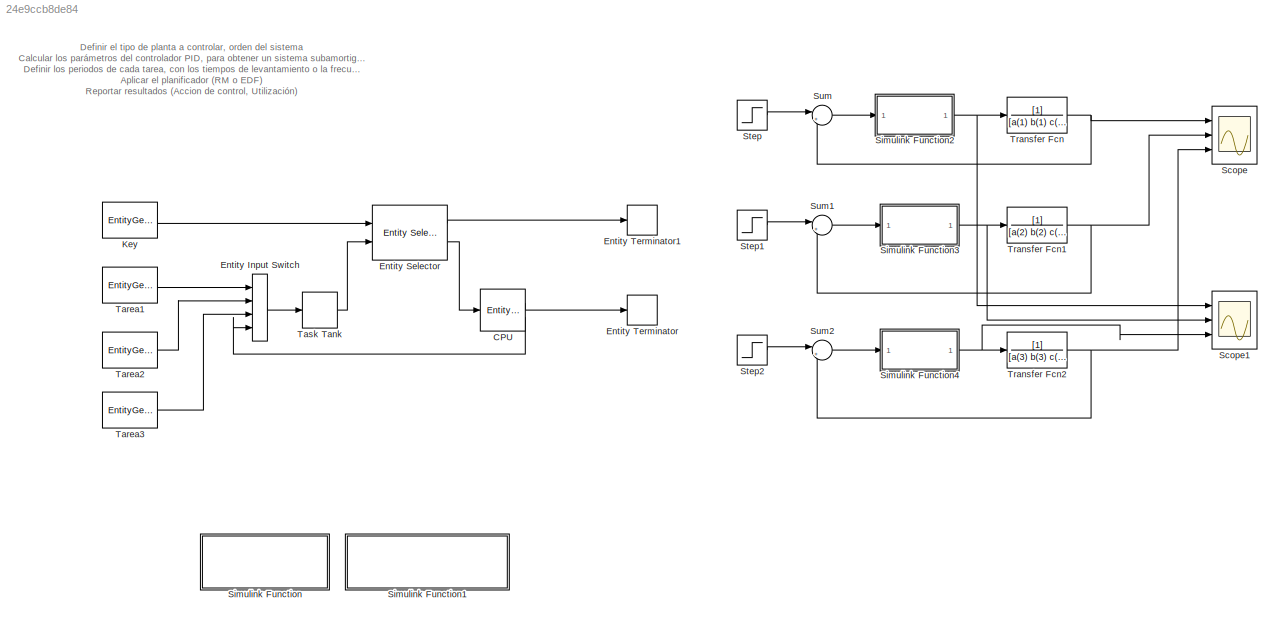
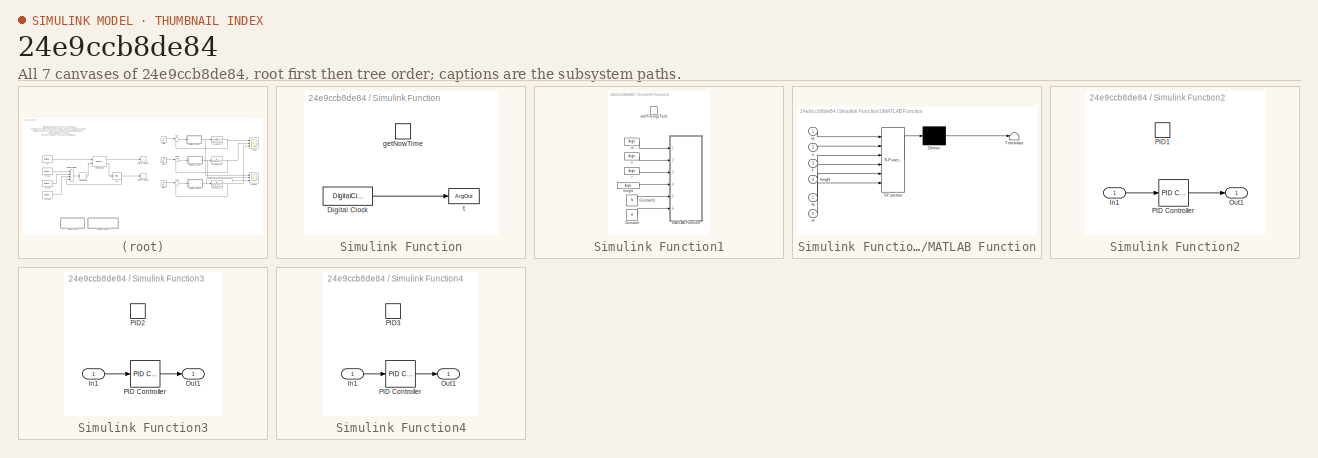
[diagram: thumbnail index - all 7 canvases of the model, root first then tree order]
MODEL slx_24e9ccb8de84
KIND model
CONFIG AbsTol = auto
CONFIG EnableMultiTasking = off
CONFIG FixedStep = auto
CONFIG MaxStep = auto
CONFIG MinStep = auto
CONFIG RelTol = 1e-3
CONFIG SampleTimeConstraint = Unconstrained
CONFIG SolverName = VariableStepAuto
CONFIG StartTime = 0.0
CONFIG StopTime = 0.2
BLOCK [EntityServer]  CPU
  Capacity = 1
  EntryAction = entity.priority = 2;\ns = getNowTime();\nentity.s = s;
  ExitAction = f = getNowTime();\naddTiming2Task(entity.id, entity.s, f, 0.5);\n\nswitch entity.id\n    case 1\n        PID1();\n    case 2\n        PID2();\n    case 3\n        PID3();\nend
  InputPortMap = u2
  InputPortMessageModes = m
  OutputPortMap = o9,o10
  OutputPortMessageModes = m,m
  PermitPreemptionBasedOnAttribute = on
  Ports = [1, 2]
  PreemptAction = %\nf = getNowTime();\naddTiming2Task(entity.id, entity.s, f, 0.5);
  ResidualTimeAttributeName = C
  ServiceTimeAction = dt = entity.C + 0*rand(1,1);
  ServiceTimeAttributeName = C
  ServiceTimeSource = Attribute
  SortingAttributeName = C
  WriteResidualTimeToAttribute = on
BLOCK [EntityInputSwitch] Entity Input Switch
  InputPortMap = u1,u2,u3,u4
  InputPortMessageModes = m,m,m,m
  NumberInputPorts = 4
  OutputPortMap = o0
  OutputPortMessageModes = m
  Ports = [4, 1]
BLOCK [Reference] Entity Selector  REF=sldelib/Entity Selector
  Ports = [2, 2]
  SourceBlock = sldelib/Entity Selector
  SourceProductBaseCode = SE
  SourceType = desSelector
BLOCK [EntityTerminator] Entity Terminator
  InputPortMap = u0
  InputPortMessageModes = m
  Ports = [1]
BLOCK [EntityTerminator] Entity Terminator1
  InputPortMap = u0
  InputPortMessageModes = m
  Ports = [1]
BLOCK [EntityGenerator] Key
  AttributeInitialValue = 0
  AttributeName = key
  EntityType = Structured
  EntityTypeName = Entity
  GenerateAction = persistent j;\n\nif isempty(j)\n    j = 0;\nend\n\nif j == length(idx)\n    j = 0;      \nend\n\nj = j + 1;\nentity.key = idx(j);
  IntergenerationTimeAction = persistent i;\n\nif isempty(i)\n    i = 0;\nend\nif i == length(Dt)\n    i = 0;\nend\n\ni = i + 1;\ndt = Dt(i);
  OutputPortMap = o3
  OutputPortMessageModes = m
  Ports = [0, 1]
  TimeSource = MATLAB action
BLOCK [Scope] Scope
  Floating = off
  NumInputPorts = 3
  Ports = [3]
  ScopeSpecificationString = Simulink.scopes.TimeScopeBlockCfg('CurrentConfiguration', extmgr.ConfigurationSet(extmgr.Configuration('Core','General UI',true),extmgr.Configuration('Core','Source UI',true),extmgr.Configuration('Sources','WiredSimulink',true,'DataLoggingVariableName','ScopeData1'),extmgr.Configuration('Visuals','Time Domain',true,'SerializedDisplays',{struct('MinYLimReal','-0.15099','MaxYLimReal','1.35894','YLab...<+2862ch>
BLOCK [Scope] Scope1
  Floating = off
  NumInputPorts = 3
  Ports = [3]
  ScopeSpecificationString = Simulink.scopes.TimeScopeBlockCfg('CurrentConfiguration', extmgr.ConfigurationSet(extmgr.Configuration('Core','General UI',true),extmgr.Configuration('Core','Source UI',true),extmgr.Configuration('Sources','WiredSimulink',true,'DataLoggingVariableName','ScopeData1'),extmgr.Configuration('Visuals','Time Domain',true,'SerializedDisplays',{struct('MinYLimReal','-0.00608','MaxYLimReal','0.05476','YLab...<+2888ch>
BLOCK [SubSystem] Simulink Function
  Ports = [0, 0, 0, 1]
  RequestExecContextInheritance = off
  TreatAsAtomicUnit = on
BLOCK [DigitalClock] Simulink Function/Digital Clock
  SampleTime = -1
BLOCK [TriggerPort] Simulink Function/getNowTime
  FunctionName = getNowTime
  IsSimulinkFunction = on
  Ports = []
  StatesWhenEnabling = held
  TriggerType = function-call
  VariantControl = (inherit)
BLOCK [ArgOut] Simulink Function/t
  ArgumentName = t
  DisableCoverage = on
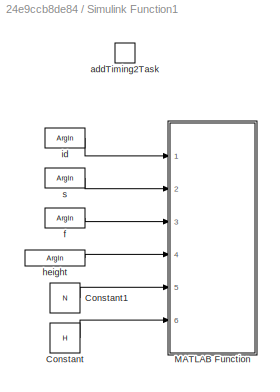
BLOCK [SubSystem] Simulink Function1
  Ports = [0, 0, 0, 1]
  RequestExecContextInheritance = off
  TreatAsAtomicUnit = on
BLOCK [Constant] Simulink Function1/Constant
  Value = H
BLOCK [Constant] Simulink Function1/Constant1
  Value = N
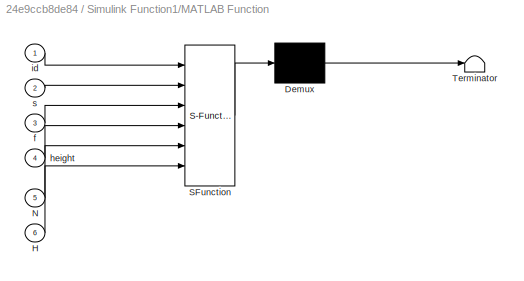
BLOCK [SubSystem] Simulink Function1/MATLAB Function
  ErrorFcn = Stateflow.Translate.translate
  PermitHierarchicalResolution = ExplicitOnly
  Ports = [6]
  RequestExecContextInheritance = off
  SFBlockType = MATLAB Function
  TreatAsAtomicUnit = on
BLOCK [Demux] Simulink Function1/MATLAB Function/ Demux 
  Outputs = 1
  Ports = [1, 1]
BLOCK [S-Function] Simulink Function1/MATLAB Function/ SFunction 
  EnableBusSupport = on
  FunctionName = sf_sfun
  PortCounts = [6 1]
  Ports = [6, 1]
  SFcnIsStateOwnerBlock = off
  SFunctionDeploymentMode = off
  Tag = Stateflow S-Function 2
BLOCK [Terminator] Simulink Function1/MATLAB Function/ Terminator 
BLOCK [Inport] Simulink Function1/MATLAB Function/H
  Port = 6
BLOCK [Inport] Simulink Function1/MATLAB Function/N
  Port = 5
BLOCK [Inport] Simulink Function1/MATLAB Function/f
  Port = 3
BLOCK [Inport] Simulink Function1/MATLAB Function/height
  Port = 4
BLOCK [Inport] Simulink Function1/MATLAB Function/id
BLOCK [Inport] Simulink Function1/MATLAB Function/s
  Port = 2
BLOCK [TriggerPort] Simulink Function1/addTiming2Task
  FunctionName = addTiming2Task
  FunctionVisibility = scoped
  IsSimulinkFunction = on
  Ports = []
  StatesWhenEnabling = held
  TriggerType = function-call
  VariantControl = (inherit)
BLOCK [ArgIn] Simulink Function1/f
  ArgumentName = f
  DisableCoverage = on
  Port = 3
BLOCK [ArgIn] Simulink Function1/height
  ArgumentName = height
  DisableCoverage = on
  Port = 4
BLOCK [ArgIn] Simulink Function1/id
  ArgumentName = id
  DisableCoverage = on
BLOCK [ArgIn] Simulink Function1/s
  ArgumentName = s
  DisableCoverage = on
  Port = 2
BLOCK [SubSystem] Simulink Function2
  Ports = [1, 1, 0, 1]
  RequestExecContextInheritance = off
  TreatAsAtomicUnit = on
BLOCK [Inport] Simulink Function2/In1
BLOCK [Outport] Simulink Function2/Out1
BLOCK [Reference] Simulink Function2/PID Controller  REF=slpidlib/PID Controller
  Ports = [1, 1]
  SourceBlock = slpidlib/PID Controller
  SourceProductBaseCode = SL
  SourceType = PID 1dof
BLOCK [TriggerPort] Simulink Function2/PID1
  FunctionName = PID1
  FunctionVisibility = scoped
  IsSimulinkFunction = on
  Ports = []
  StatesWhenEnabling = held
  TriggerType = function-call
  VariantControl = (inherit)
BLOCK [SubSystem] Simulink Function3
  Ports = [1, 1, 0, 1]
  RequestExecContextInheritance = off
  TreatAsAtomicUnit = on
BLOCK [Inport] Simulink Function3/In1
BLOCK [Outport] Simulink Function3/Out1
BLOCK [Reference] Simulink Function3/PID Controller  REF=slpidlib/PID Controller
  Ports = [1, 1]
  SourceBlock = slpidlib/PID Controller
  SourceProductBaseCode = SL
  SourceType = PID 1dof
BLOCK [TriggerPort] Simulink Function3/PID2
  FunctionName = PID2
  FunctionVisibility = scoped
  IsSimulinkFunction = on
  Ports = []
  StatesWhenEnabling = held
  TriggerType = function-call
  VariantControl = (inherit)
BLOCK [SubSystem] Simulink Function4
  Ports = [1, 1, 0, 1]
  RequestExecContextInheritance = off
  TreatAsAtomicUnit = on
BLOCK [Inport] Simulink Function4/In1
BLOCK [Outport] Simulink Function4/Out1
BLOCK [Reference] Simulink Function4/PID Controller  REF=slpidlib/PID Controller
  Ports = [1, 1]
  SourceBlock = slpidlib/PID Controller
  SourceProductBaseCode = SL
  SourceType = PID 1dof
BLOCK [TriggerPort] Simulink Function4/PID3
  FunctionName = PID3
  FunctionVisibility = scoped
  IsSimulinkFunction = on
  Ports = []
  StatesWhenEnabling = held
  TriggerType = function-call
  VariantControl = (inherit)
BLOCK [Step] Step
  SampleTime = 0
  Time = 0
BLOCK [Step] Step1
  SampleTime = 0
  Time = 0
BLOCK [Step] Step2
  SampleTime = 0
  Time = 0
BLOCK [Sum] Sum
  Inputs = |+-
  Ports = [2, 1]
BLOCK [Sum] Sum1
  Inputs = |+-
  Ports = [2, 1]
BLOCK [Sum] Sum2
  Inputs = |+-
  Ports = [2, 1]
BLOCK [EntityGenerator] Tarea1
  AttributeInitialValue = 1|1|1|1|1
  AttributeName = h|C|s|priority|id
  EntityType = Structured
  EntityTypeName = Tarea
  ExitAction = f = getNowTime();\naddTiming2Task(entity.id, f, f+1e-10, 1);
  GenerateAction = i = 1;\nentity.id = i;\n\n% entity.priority = selectTask(-1, i)\nentity.h = h(i);\nentity.C = C(i);
  IntergenerationTimeAction = dt = h(1) + 0*rand(1,1);
  OutputPortMap = o3
  OutputPortMessageModes = m
  Ports = [0, 1]
  TimeSource = MATLAB action
BLOCK [EntityGenerator] Tarea2
  AttributeInitialValue = 1|1|1|1|1
  AttributeName = h|C|s|priority|id
  EntityType = Structured
  EntityTypeName = Tarea
  ExitAction = f = getNowTime();\naddTiming2Task(entity.id, f, f+1e-10, 1);
  GenerateAction = i = 2;\nentity.id = i;\n\n% entity.priority = selectTask(-1, i)\nentity.h = h(i);\nentity.C = C(i);
  IntergenerationTimeAction = dt = h(2) + 0*rand(1,1);
  OutputPortMap = o3
  OutputPortMessageModes = m
  Ports = [0, 1]
  TimeSource = MATLAB action
BLOCK [EntityGenerator] Tarea3
  AttributeInitialValue = 1|1|1|1|1
  AttributeName = h|C|s|priority|id
  EntityType = Structured
  EntityTypeName = Tarea
  ExitAction = f = getNowTime();\naddTiming2Task(entity.id, f, f+1e-10, 1);
  GenerateAction = i = 3;\nentity.id = i;\n\n% entity.priority = selectTask(-1, i)\nentity.h = h(i);\nentity.C = C(i);
  IntergenerationTimeAction = dt = h(3) + 0*rand(1,1);
  OutputPortMap = o3
  OutputPortMessageModes = m
  Ports = [0, 1]
  TimeSource = MATLAB action
BLOCK [EntityStore] Task Tank
  EntryAction = entity.priority = 1;
  InputPortMap = u0
  InputPortMessageModes = m
  OutputPortMap = o4
  OutputPortMessageModes = m
  Ports = [1, 1]
BLOCK [TransferFcn] Transfer Fcn
  Denominator = [a(1) b(1) c(1)]
BLOCK [TransferFcn] Transfer Fcn1
  Denominator = [a(2) b(2) c(2)]
BLOCK [TransferFcn] Transfer Fcn2
  Denominator = [a(3) b(3) c(3)]
ANNOTATION (root): Definir el tipo de planta a controlar, orden del sistema Calcular los parámetros del controlador PID, para obtener un sistema subamortiguado (M_p) Definir los periodos de cada tarea, con los tiempos de levantamiento o la frecuecia de corte del sistema Aplicar el planificador (RM o EDF) Reportar resultados (Accion de control, Utilización)
LINE  CPU:1 -> Entity Terminator:1
LINE  CPU:2 -> Entity Input Switch:4
LINE Entity Input Switch:1 -> Task Tank:1
LINE Entity Selector:1 -> Entity Terminator1:1
LINE Entity Selector:2 ->  CPU:1
LINE Key:1 -> Entity Selector:1
LINE Simulink Function/Digital Clock:1 -> Simulink Function/t:1
LINE Simulink Function1/Constant1:1 -> Simulink Function1/MATLAB Function:5
LINE Simulink Function1/Constant:1 -> Simulink Function1/MATLAB Function:6
LINE Simulink Function1/f:1 -> Simulink Function1/MATLAB Function:3
LINE Simulink Function1/height:1 -> Simulink Function1/MATLAB Function:4
LINE Simulink Function1/id:1 -> Simulink Function1/MATLAB Function:1
LINE Simulink Function1/s:1 -> Simulink Function1/MATLAB Function:2
LINE Simulink Function2/In1:1 -> Simulink Function2/PID Controller:1
LINE Simulink Function2/PID Controller:1 -> Simulink Function2/Out1:1
NET Simulink Function2:1 -> Scope1:1, Transfer Fcn:1
LINE Simulink Function3/In1:1 -> Simulink Function3/PID Controller:1
LINE Simulink Function3/PID Controller:1 -> Simulink Function3/Out1:1
NET Simulink Function3:1 -> Scope1:2, Transfer Fcn1:1
LINE Simulink Function4/In1:1 -> Simulink Function4/PID Controller:1
LINE Simulink Function4/PID Controller:1 -> Simulink Function4/Out1:1
NET Simulink Function4:1 -> Scope1:3, Transfer Fcn2:1
LINE Step1:1 -> Sum1:1
LINE Step2:1 -> Sum2:1
LINE Step:1 -> Sum:1
LINE Sum1:1 -> Simulink Function3:1
LINE Sum2:1 -> Simulink Function4:1
LINE Sum:1 -> Simulink Function2:1
LINE Tarea1:1 -> Entity Input Switch:1
LINE Tarea2:1 -> Entity Input Switch:2
LINE Tarea3:1 -> Entity Input Switch:3
LINE Task Tank:1 -> Entity Selector:2
NET Transfer Fcn1:1 -> Scope:2, Sum1:2
NET Transfer Fcn2:1 -> Scope:3, Sum2:2
NET Transfer Fcn:1 -> Scope:1, Sum:2
note: NET lines group one-source signal fan-out (src -> all destinations, sorted); 1:1 wires keep LINE
CHART Simulink Function1/MATLAB Function states=1 transitions=1
  STATE_LABEL 'eML_blk_kernel()'
  STATE_LABEL "SCRIPT:\nfunction fcn(id, s, f, height, N, H)    \n      \n    persistent ax \n\n    cBlue = [18/255 104/255 179/255];\n    cRed = [237/255 36/255 38/255];\n    cGreen = [155 190 61]/255;\n    allColors = [cBlue; cRed; cGreen];\n\n    if isempty(ax)\n        close all;\n        fig = figure('position',[762 173 920 326]);\n        ax = axes;\n        set(ax,'box','on');\n        grid on; hold on;\n        set(ax,'...<+244ch>"
CHART  states=0 transitions=0
